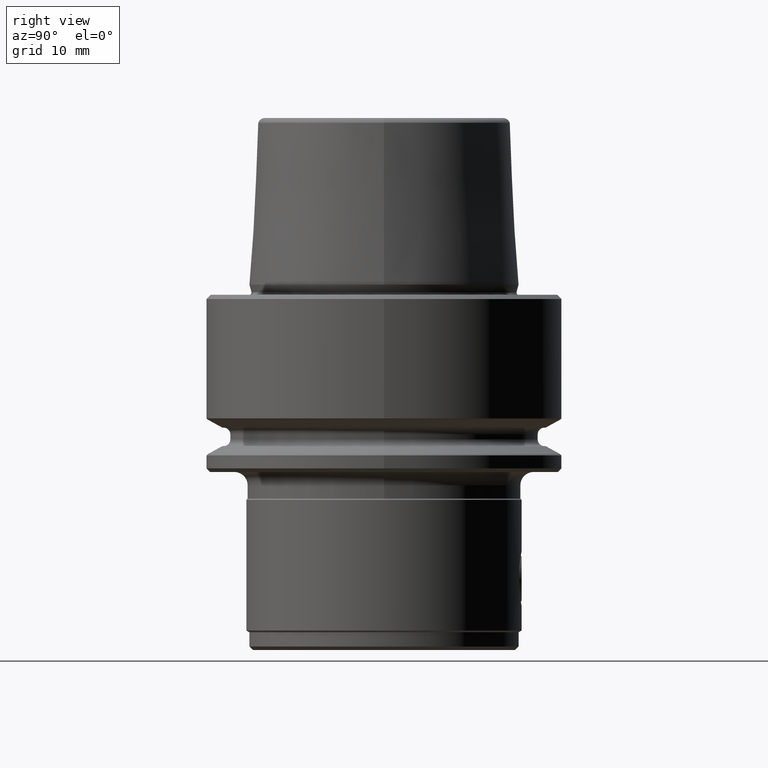
[diagram: clean part render]
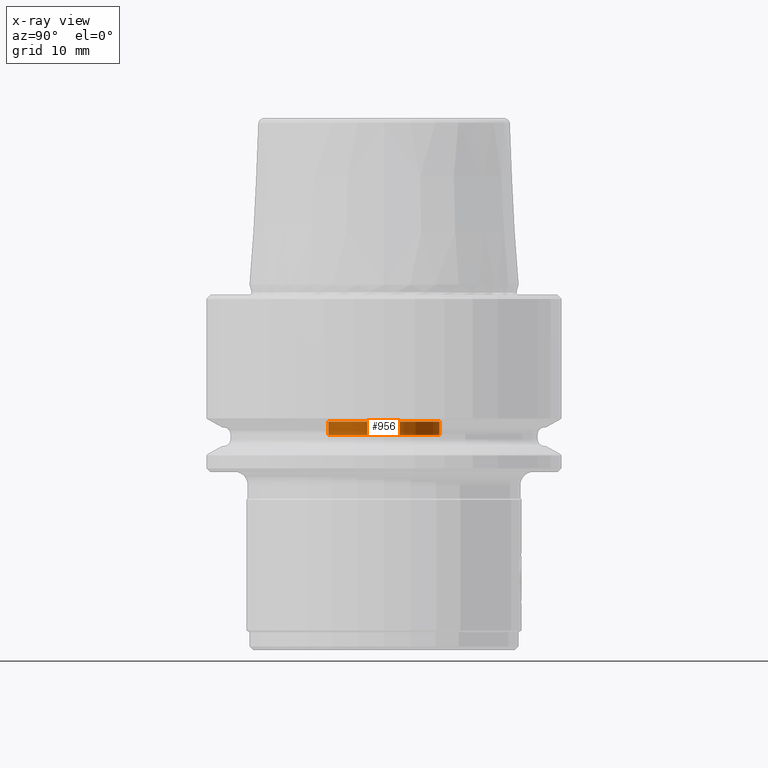
[diagram: x-ray — body ghosted, one internal face saturated and labeled with its STEP entity id]
A machine part, right view, then the same camera in x-ray: the body is ghosted and one INTERNAL B-rep face — a face not visible from any outside direction — is saturated and labeled: STEP entity #956.
In plain terms, the highlighted cylindrical surface (partial cylindrical patch) has radius 6.25 mm, axis along (0, -0, -1).
Its self-contained STEP definition (entity closure, byte-faithful):
#956=ADVANCED_FACE('NONE',(#2373),#2374,.F.);
#1174=EDGE_CURVE('NONE',#1788,#1794,#2629,.T.);
#1240=EDGE_CURVE('NONE',#1686,#1788,#2701,.T.);
#1388=VERTEX_POINT('NONE',#2865);
#1686=VERTEX_POINT('NONE',#3194);
#1788=VERTEX_POINT('NONE',#3308);
#1794=VERTEX_POINT('NONE',#3314);
#1902=EDGE_CURVE('NONE',#1686,#1388,#3434,.T.);
#1994=EDGE_CURVE('NONE',#1388,#1794,#3535,.T.);
#2373=FACE_OUTER_BOUND('',#4035,.T.);
#2374=CYLINDRICAL_SURFACE('',#4036,6.25);
#2629=LINE('',#4394,#4395);
#2701=CIRCLE('',#4573,6.25);
#2865=CARTESIAN_POINT('',(-7.65404249467096E-016,6.25,-15.8));
#3194=CARTESIAN_POINT('',(-7.65404249467096E-016,6.25,-14.3));
#3308=CARTESIAN_POINT('',(0.0,-6.25,-14.3));
#3314=CARTESIAN_POINT('',(0.0,-6.25,-15.8));
#3434=LINE('',#5666,#5667);
#3535=CIRCLE('',#5835,6.25);
#4035=EDGE_LOOP('',(#6272,#6273,#6274,#6275));
#4036=AXIS2_PLACEMENT_3D('',#6276,#6277,#6278);
#4394=CARTESIAN_POINT('',(0.0,-6.25,-35.0));
#4395=VECTOR('',#6679,1000.0);
#4573=AXIS2_PLACEMENT_3D('',#6754,#6755,#6756);
#5666=CARTESIAN_POINT('',(-7.65404249467096E-016,6.25,-35.0));
#5667=VECTOR('',#7674,1000.0);
#5835=AXIS2_PLACEMENT_3D('',#7791,#7792,#7793);
#6272=ORIENTED_EDGE('',*,*,#1240,.F.);
#6273=ORIENTED_EDGE('',*,*,#1902,.T.);
#6274=ORIENTED_EDGE('',*,*,#1994,.T.);
#6275=ORIENTED_EDGE('',*,*,#1174,.F.);
#6276=CARTESIAN_POINT('',(0.0,0.0,-35.0));
#6277=DIRECTION('',(0.0,-0.0,-1.0));
#6278=DIRECTION('',(0.0,-1.0,0.0));
#6679=DIRECTION('',(0.0,-1.3807492404664E-016,-1.0));
#6754=CARTESIAN_POINT('',(0.0,2.85815092776544E-015,-14.3));
#6755=DIRECTION('',(0.0,0.0,-1.0));
#6756=DIRECTION('',(0.0,-1.0,0.0));
#7674=DIRECTION('',(0.0,-1.3807492404664E-016,-1.0));
#7791=CARTESIAN_POINT('',(0.0,2.65103854169548E-015,-15.8));
#7792=DIRECTION('',(0.0,0.0,-1.0));
#7793=DIRECTION('',(0.0,-1.0,0.0));